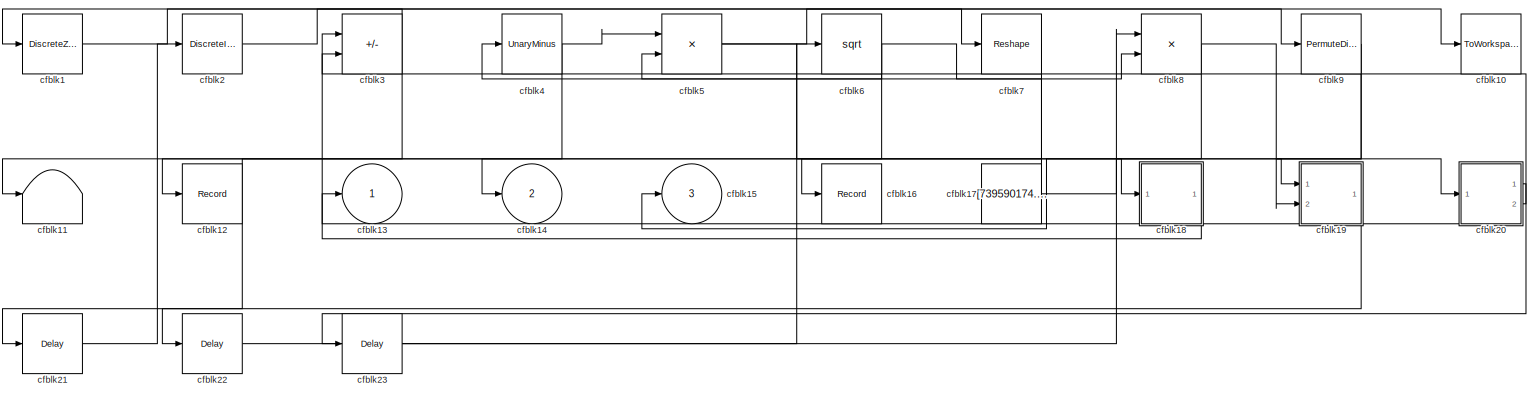
[diagram: root canvas - part 1/1, most of the canvas]
MODEL slx_9a9d31c94103
KIND model
CONFIG AbsTol = auto
CONFIG EnableMultiTasking = off
CONFIG FixedStep = auto
CONFIG MaxStep = auto
CONFIG MinStep = auto
CONFIG RelTol = 1e-3
CONFIG SampleTimeConstraint = Unconstrained
CONFIG SolverName = VariableStepAuto
CONFIG StartTime = 0.0
CONFIG StopTime = 10.0
BLOCK [DiscreteZeroPole] cfblk1
  Gain = 1
  Poles = [0 0.5]
BLOCK [ToWorkspace] cfblk10
  FixptAsFi = on
  MaxDataPoints = inf
  Ports = [1]
  SampleTime = -1
  SaveFormat = Timeseries
  VariableName = gdshxds
BLOCK [Terminator] cfblk11
BLOCK [Record] cfblk12
  FileSettingsInternal = {"entries":[{"content":{"excelSettings":{"content":{},"type":"Streamout.ExcelSettings"}},"type":"Streamout.FileSettingStorage","uuid":"b7853067-aa81-4ff4-b03c-5eefb2e9456f"}],"packageUris":["http://schema.mathworks.com/mf0/streamout_blocks/R2020a"],"version":"1.0"}
  Ports = [1]
  SignalsInternal = {"entries":[{"content":{"signals":[{"content":{"blockPath":["sampleModel228/cfblk12"],"channel":[],"dimensions":[1,1],"domain":"sampleModel228/cfblk12","lineColor":"#edb120","plots":[1],"port":1,"sid":[""],"signalID":8909,"signalName":"cfblk3"},"type":"RecordBlkView.Signal","uuid":"a36b1164-e6c3-447c-bebc-b7c5e35fa2b4"}]},"type":"RecordBlkView.InputSignals","uuid":"7dc5b746-0d92-4986-ba98-2d25609e...<+98ch>
  VisualizationBindings = {"sparklinesplugin":{"info":[{"bindingParametersList":[],"subplotID":1}]}}
BLOCK [Outport] cfblk13
BLOCK [Outport] cfblk14
  Port = 2
BLOCK [Outport] cfblk15
  Port = 3
BLOCK [Record] cfblk16
  FileSettingsInternal = {"entries":[{"content":{"excelSettings":{"content":{},"type":"Streamout.ExcelSettings"}},"type":"Streamout.FileSettingStorage","uuid":"8bc86539-756b-41d3-8148-bbd2c8c8e0a7"}],"packageUris":["http://schema.mathworks.com/mf0/streamout_blocks/R2020a"],"version":"1.0"}
  Ports = [1]
  SignalsInternal = {"entries":[{"content":{"signals":[{"content":{"blockPath":["sampleModel228/cfblk16"],"channel":[],"dimensions":[1],"domain":"sampleModel228/cfblk16","lineColor":"#7e2f8e","plots":[1],"port":1,"sid":[""],"signalID":8913,"signalName":"cfblk6"},"type":"RecordBlkView.Signal","uuid":"a333abe5-6e46-4828-b4fc-efe21365cda2"}]},"type":"RecordBlkView.InputSignals","uuid":"23a0d02e-941f-4979-b7cc-2819933425...<+96ch>
  VisualizationBindings = {"sparklinesplugin":{"info":[{"bindingParametersList":[],"subplotID":1}]}}
BLOCK [Constant] cfblk17
  SampleTime = 1
  Value = [739590174.879989]
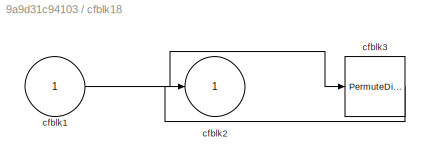
BLOCK [SubSystem] cfblk18
  Ports = [1, 1]
  RequestExecContextInheritance = off
BLOCK [Inport] cfblk18/cfblk1
BLOCK [Outport] cfblk18/cfblk2
BLOCK [PermuteDimensions] cfblk18/cfblk3
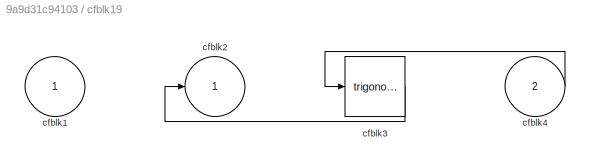
BLOCK [SubSystem] cfblk19
  Ports = [2, 1]
  RequestExecContextInheritance = off
BLOCK [Inport] cfblk19/cfblk1
BLOCK [Outport] cfblk19/cfblk2
BLOCK [Trigonometry] cfblk19/cfblk3
  Ports = [1, 1]
BLOCK [Inport] cfblk19/cfblk4
  Port = 2
BLOCK [DiscreteIntegrator] cfblk2
  ICPrevOutput = DiscIntNeverNeededParam
  ICPrevScaledInput = DiscIntNeverNeededParam
  InitialConditionSetting = Auto
  Ports = [1, 1]
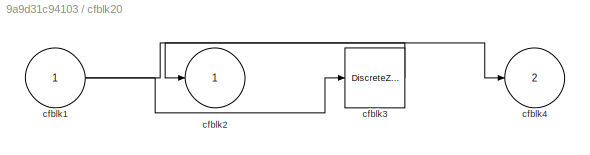
BLOCK [SubSystem] cfblk20
  Ports = [1, 2]
  RequestExecContextInheritance = off
BLOCK [Inport] cfblk20/cfblk1
BLOCK [Outport] cfblk20/cfblk2
BLOCK [DiscreteZeroPole] cfblk20/cfblk3
  Gain = 1
  Poles = [0 0.5]
BLOCK [Outport] cfblk20/cfblk4
  Port = 2
BLOCK [Delay] cfblk21
  InputPortMap = u0
  Ports = [1, 1]
  SampleTime = 1
BLOCK [Delay] cfblk22
  InputPortMap = u0
  Ports = [1, 1]
  SampleTime = 1
BLOCK [Delay] cfblk23
  InputPortMap = u0
  Ports = [1, 1]
  SampleTime = 1
BLOCK [Sum] cfblk3
  IconShape = rectangular
  Inputs = +-
  Ports = [2, 1]
BLOCK [UnaryMinus] cfblk4
BLOCK [Product] cfblk5
  Ports = [2, 1]
BLOCK [Sqrt] cfblk6
BLOCK [Reshape] cfblk7
  Ports = [1, 1]
BLOCK [Product] cfblk8
  Inputs = **
  Ports = [2, 1]
BLOCK [PermuteDimensions] cfblk9
NET cfblk17:1 -> cfblk19:1, cfblk4:1
LINE cfblk18/cfblk1:1 -> cfblk18/cfblk3:1
LINE cfblk18/cfblk3:1 -> cfblk18/cfblk2:1
LINE cfblk18:1 -> cfblk3:1
LINE cfblk19/cfblk3:1 -> cfblk19/cfblk2:1
LINE cfblk19/cfblk4:1 -> cfblk19/cfblk3:1
LINE cfblk19:1 -> cfblk21:1
LINE cfblk1:1 -> cfblk7:1
NET cfblk20/cfblk1:1 -> cfblk20/cfblk3:1, cfblk20/cfblk4:1
LINE cfblk20/cfblk3:1 -> cfblk20/cfblk2:1
LINE cfblk20:1 -> cfblk23:1
NET cfblk20:2 -> cfblk13:1, cfblk3:2
LINE cfblk21:1 -> cfblk2:1
LINE cfblk22:1 -> cfblk6:1
LINE cfblk23:1 -> cfblk8:1
LINE cfblk2:1 -> cfblk9:1
NET cfblk3:1 -> cfblk12:1, cfblk1:1
NET cfblk4:1 -> cfblk11:1, cfblk5:1
NET cfblk5:1 -> cfblk10:1, cfblk18:1
NET cfblk6:1 -> cfblk16:1, cfblk5:2, cfblk8:2
LINE cfblk7:1 -> cfblk14:1
NET cfblk8:1 -> cfblk20:1, cfblk22:1
NET cfblk9:1 -> cfblk15:1, cfblk19:2
note: NET lines group one-source signal fan-out (src -> all destinations, sorted); 1:1 wires keep LINE
